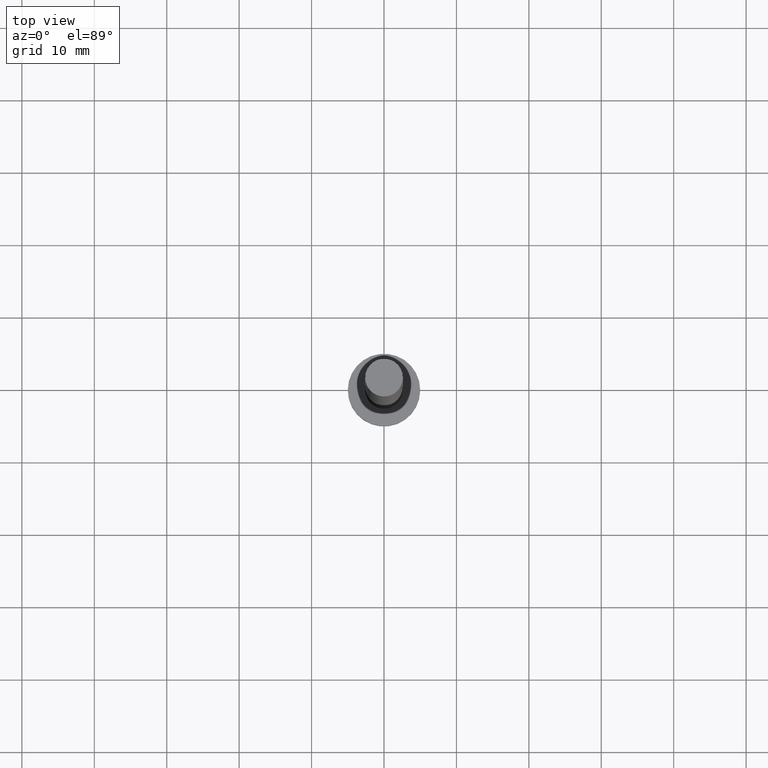
[diagram: clean part render]
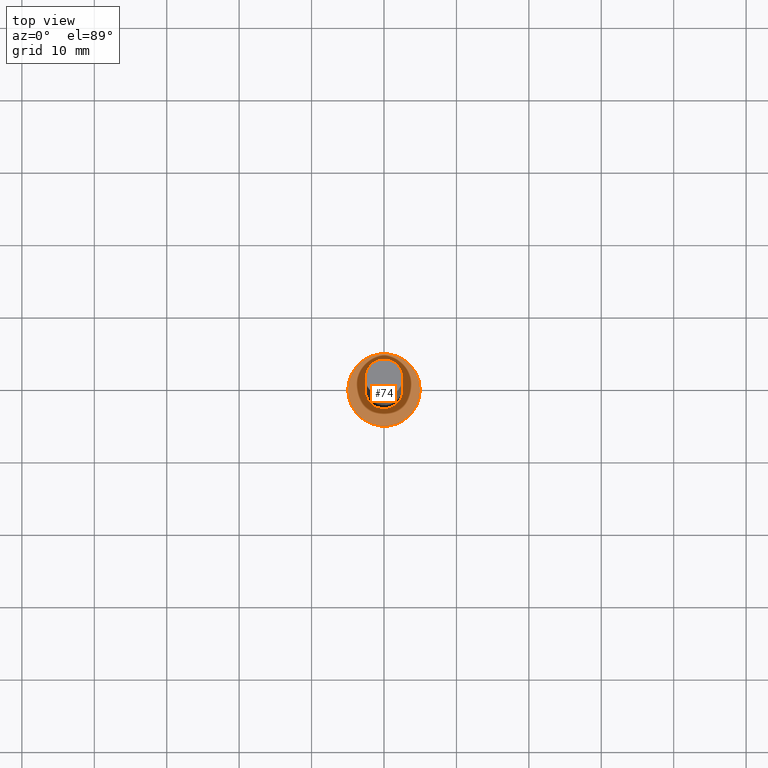
[diagram: same view with one face highlighted and labeled with its STEP entity id]
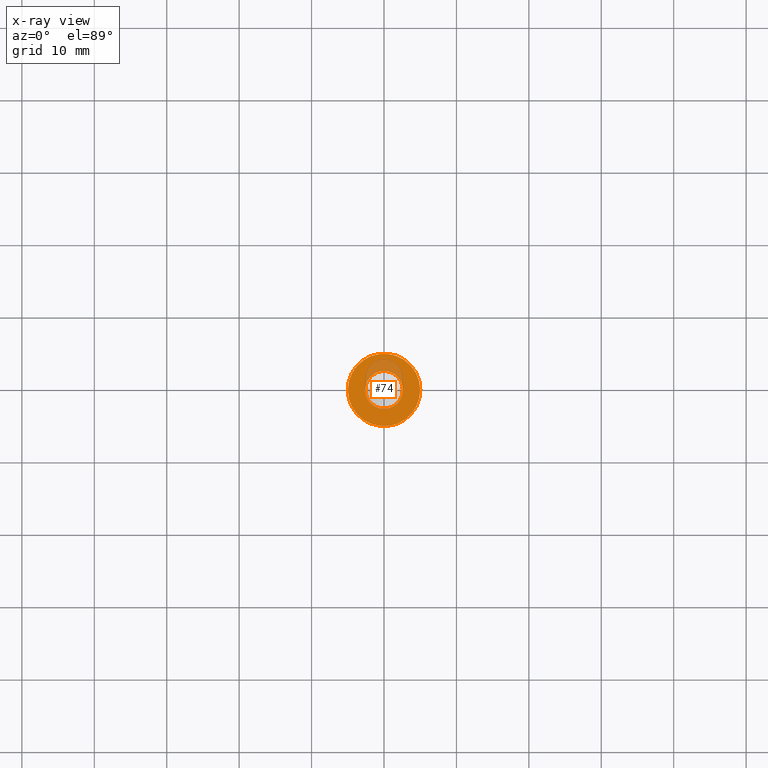
[diagram: x-ray of the same camera — body ghosted, the highlighted face saturated]
A machine part, top view. The second image highlights one B-rep face of the part: STEP entity #74.
The next image is the same camera in x-ray: the body ghosted, the highlighted face saturated — about 16% of this face is hidden behind the body in this view.
In plain terms, the highlighted planar face has unit normal (0, 0, 1).
Its self-contained STEP definition (entity closure, byte-faithful):
#8 = DIRECTION ( 'NONE',  ( 0.000000000000000000, 0.000000000000000000, 1.000000000000000000 ) ) ;
#10 = DIRECTION ( 'NONE',  ( 1.000000000000000000, 0.000000000000000000, 0.000000000000000000 ) ) ;
#25 = DIRECTION ( 'NONE',  ( 0.000000000000000000, 0.000000000000000000, 1.000000000000000000 ) ) ;
#37 = CIRCLE ( 'NONE', #134, 5.000000000000000000 ) ;
#40 = CARTESIAN_POINT ( 'NONE',  ( 0.000000000000000000, 0.000000000000000000, 3.000000000000000000 ) ) ;
#41 = EDGE_CURVE ( 'NONE', #178, #197, #236, .T. ) ;
#43 = CARTESIAN_POINT ( 'NONE',  ( -5.000000000000000000, 0.000000000000000000, 3.000000000000000000 ) ) ;
#44 = CARTESIAN_POINT ( 'NONE',  ( 5.000000000000000000, 6.123233995736766282E-16, 3.000000000000000000 ) ) ;
#46 = DIRECTION ( 'NONE',  ( 1.000000000000000000, 0.000000000000000000, 0.000000000000000000 ) ) ;
#53 = DIRECTION ( 'NONE',  ( 0.000000000000000000, 0.000000000000000000, 1.000000000000000000 ) ) ;
#56 = DIRECTION ( 'NONE',  ( 1.000000000000000000, 0.000000000000000000, 0.000000000000000000 ) ) ;
#58 = ORIENTED_EDGE ( 'NONE', *, *, #191, .F. ) ;
#74 = ADVANCED_FACE ( 'NONE', ( #239, #140 ), #217, .T. ) ;
#76 = DIRECTION ( 'NONE',  ( 1.000000000000000000, 0.000000000000000000, -0.000000000000000000 ) ) ;
#82 = CARTESIAN_POINT ( 'NONE',  ( 0.000000000000000000, 0.000000000000000000, 3.000000000000000000 ) ) ;
#85 = CIRCLE ( 'NONE', #204, 2.600000000000000089 ) ;
#90 = VERTEX_POINT ( 'NONE', #118 ) ;
#93 = EDGE_LOOP ( 'NONE', ( #156, #196 ) ) ;
#111 = DIRECTION ( 'NONE',  ( 0.000000000000000000, 0.000000000000000000, 1.000000000000000000 ) ) ;
#118 = CARTESIAN_POINT ( 'NONE',  ( 2.600000000000000089, 3.184081677783117698E-16, 3.000000000000000000 ) ) ;
#134 = AXIS2_PLACEMENT_3D ( 'NONE', #182, #25, #10 ) ;
#140 = FACE_OUTER_BOUND ( 'NONE', #93, .T. ) ;
#141 = ORIENTED_EDGE ( 'NONE', *, *, #255, .F. ) ;
#142 = AXIS2_PLACEMENT_3D ( 'NONE', #40, #111, #76 ) ;
#144 = CARTESIAN_POINT ( 'NONE',  ( 0.000000000000000000, 0.000000000000000000, 3.000000000000000000 ) ) ;
#156 = ORIENTED_EDGE ( 'NONE', *, *, #41, .T. ) ;
#167 = DIRECTION ( 'NONE',  ( 0.000000000000000000, 0.000000000000000000, 1.000000000000000000 ) ) ;
#176 = CARTESIAN_POINT ( 'NONE',  ( 0.000000000000000000, 0.000000000000000000, 3.000000000000000000 ) ) ;
#178 = VERTEX_POINT ( 'NONE', #43 ) ;
#181 = EDGE_LOOP ( 'NONE', ( #141, #58 ) ) ;
#182 = CARTESIAN_POINT ( 'NONE',  ( 0.000000000000000000, 0.000000000000000000, 3.000000000000000000 ) ) ;
#184 = AXIS2_PLACEMENT_3D ( 'NONE', #82, #167, #46 ) ;
#191 = EDGE_CURVE ( 'NONE', #90, #253, #200, .T. ) ;
#193 = AXIS2_PLACEMENT_3D ( 'NONE', #176, #53, #56 ) ;
#196 = ORIENTED_EDGE ( 'NONE', *, *, #198, .T. ) ;
#197 = VERTEX_POINT ( 'NONE', #44 ) ;
#198 = EDGE_CURVE ( 'NONE', #197, #178, #37, .T. ) ;
#200 = CIRCLE ( 'NONE', #184, 2.600000000000000089 ) ;
#203 = DIRECTION ( 'NONE',  ( 1.000000000000000000, 0.000000000000000000, 0.000000000000000000 ) ) ;
#204 = AXIS2_PLACEMENT_3D ( 'NONE', #144, #8, #203 ) ;
#217 = PLANE ( 'NONE',  #142 ) ;
#226 = CARTESIAN_POINT ( 'NONE',  ( -2.600000000000000089, 0.000000000000000000, 3.000000000000000000 ) ) ;
#236 = CIRCLE ( 'NONE', #193, 5.000000000000000000 ) ;
#239 = FACE_BOUND ( 'NONE', #181, .T. ) ;
#253 = VERTEX_POINT ( 'NONE', #226 ) ;
#255 = EDGE_CURVE ( 'NONE', #253, #90, #85, .T. ) ;